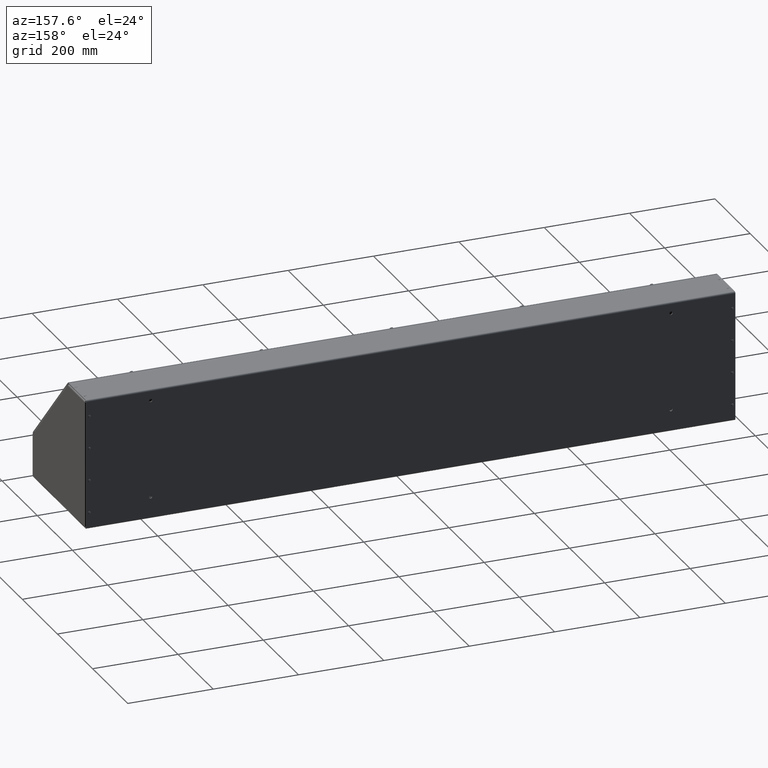
[diagram: clean part render]
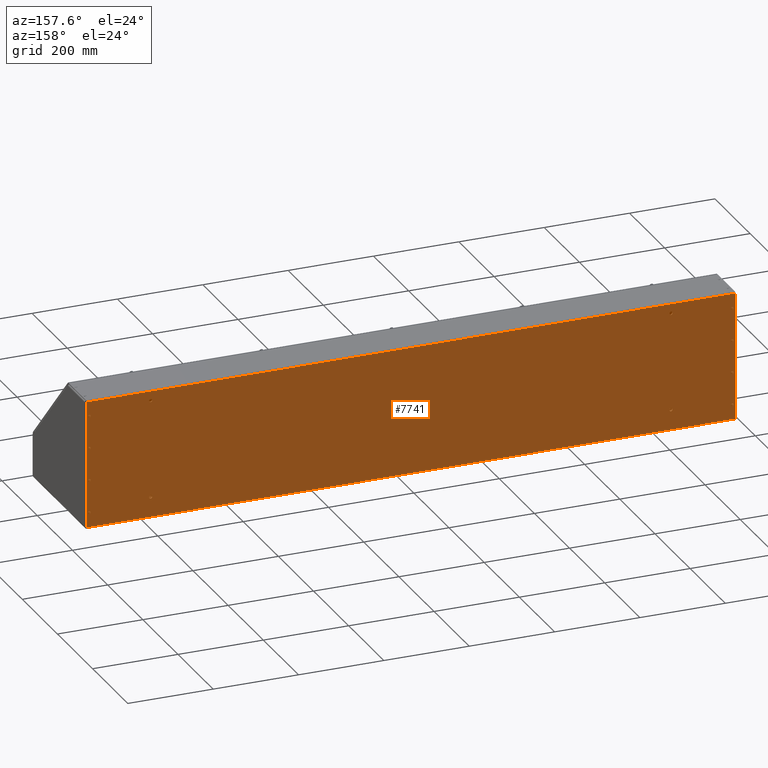
[diagram: same view with one face highlighted and labeled with its STEP entity id]
A machine part, auxiliary view. The second image highlights one B-rep face of the part: STEP entity #7741.
In plain terms, the highlighted planar face has unit normal (0, -1, 0).
Its self-contained STEP definition (entity closure, byte-faithful):
#389 = ORIENTED_EDGE ( 'NONE', *, *, #59073, .T. ) ;
#563 = ORIENTED_EDGE ( 'NONE', *, *, #38403, .T. ) ;
#571 = EDGE_CURVE ( 'NONE', #91689, #44630, #41957, .T. ) ;
#572 = ORIENTED_EDGE ( 'NONE', *, *, #94549, .T. ) ;
#657 = DIRECTION ( 'NONE',  ( 1.576006955218099937E-13, -0.000000000000000000, 1.000000000000000000 ) ) ;
#830 = AXIS2_PLACEMENT_3D ( 'NONE', #27592, #36596, #104263 ) ;
#988 = CARTESIAN_POINT ( 'NONE',  ( -30.03960261284468913, 6.261056077333082115, -1.464499999999999691 ) ) ;
#1269 = CARTESIAN_POINT ( 'NONE',  ( -29.97510261284467603, 6.261056077333143399, 4.535499999999994536 ) ) ;
#1491 = VERTEX_POINT ( 'NONE', #4725 ) ;
#1497 = AXIS2_PLACEMENT_3D ( 'NONE', #5242, #72554, #39494 ) ;
#1575 = EDGE_CURVE ( 'NONE', #13054, #56922, #15361, .T. ) ;
#1670 = DIRECTION ( 'NONE',  ( 0.000000000000000000, -1.000000000000000000, 4.725358691743579985E-15 ) ) ;
#1823 = EDGE_CURVE ( 'NONE', #98237, #48457, #99473, .T. ) ;
#2426 = CARTESIAN_POINT ( 'NONE',  ( 23.61664738715530731, 6.261056077333092773, -0.8593749999999996669 ) ) ;
#2447 = DIRECTION ( 'NONE',  ( -1.576006955218099937E-13, -0.000000000000000000, -1.000000000000000000 ) ) ;
#2761 = VECTOR ( 'NONE', #91342, 39.37007874015748143 ) ;
#3090 = EDGE_CURVE ( 'NONE', #29278, #42735, #69252, .T. ) ;
#3541 = CARTESIAN_POINT ( 'NONE',  ( 23.61664738715530731, 6.261056077333090997, -1.140624999999999556 ) ) ;
#4000 = VECTOR ( 'NONE', #32042, 39.37007874015748143 ) ;
#4181 = VERTEX_POINT ( 'NONE', #86307 ) ;
#4593 = CARTESIAN_POINT ( 'NONE',  ( -0.3833526128446899661, 6.261056077333082115, -2.863500000000000600 ) ) ;
#4655 = ORIENTED_EDGE ( 'NONE', *, *, #88747, .T. ) ;
#4725 = CARTESIAN_POINT ( 'NONE',  ( 29.20839738715530842, 6.261056077333091885, -1.464499999999989477 ) ) ;
#5187 = LINE ( 'NONE', #91348, #4000 ) ;
#5242 = CARTESIAN_POINT ( 'NONE',  ( -30.03960261284468913, 6.261056077333112313, 1.464500000000000135 ) ) ;
#5299 = EDGE_CURVE ( 'NONE', #56922, #86823, #68206, .T. ) ;
#5547 = VERTEX_POINT ( 'NONE', #18872 ) ;
#5672 = DIRECTION ( 'NONE',  ( 0.000000000000000000, -1.000000000000000000, 4.725358691743579985E-15 ) ) ;
#5814 = CARTESIAN_POINT ( 'NONE',  ( 29.20839738715530842, 6.261056077333162939, 4.535500000000009635 ) ) ;
#6348 = EDGE_LOOP ( 'NONE', ( #93161, #572 ) ) ;
#6892 = LINE ( 'NONE', #74162, #20701 ) ;
#7113 = ORIENTED_EDGE ( 'NONE', *, *, #94844, .T. ) ;
#7452 = CARTESIAN_POINT ( 'NONE',  ( -29.97510261284467603, 6.261056077333182479, 7.535499999999993648 ) ) ;
#7453 = ORIENTED_EDGE ( 'NONE', *, *, #49164, .T. ) ;
#7504 = EDGE_CURVE ( 'NONE', #13343, #40418, #70585, .T. ) ;
#7741 = ADVANCED_FACE ( 'NONE', ( #76574, #24462, #34022, #67115, #101193, #16670, #34594, #50848, #25571, #59794, #58706, #68775, #93850 ), #92726, .F. ) ;
#7926 = VECTOR ( 'NONE', #66962, 39.37007874015748143 ) ;
#7969 = LINE ( 'NONE', #74711, #83134 ) ;
#8292 = CARTESIAN_POINT ( 'NONE',  ( 29.33739738715530621, 6.261056077333122083, 1.464499999999990365 ) ) ;
#8530 = CIRCLE ( 'NONE', #62191, 0.06450000000000036260 ) ;
#8562 = ORIENTED_EDGE ( 'NONE', *, *, #14344, .T. ) ;
#9016 = EDGE_CURVE ( 'NONE', #103284, #45340, #87750, .T. ) ;
#9344 = AXIS2_PLACEMENT_3D ( 'NONE', #70575, #86168, #27916 ) ;
#9772 = AXIS2_PLACEMENT_3D ( 'NONE', #10507, #77714, #27262 ) ;
#10507 = CARTESIAN_POINT ( 'NONE',  ( 29.27289738715530731, 6.261056077333091885, -1.535499999999999865 ) ) ;
#11002 = DIRECTION ( 'NONE',  ( 0.000000000000000000, -5.337369685714369804E-15, -1.000000000000000000 ) ) ;
#11069 = CARTESIAN_POINT ( 'NONE',  ( 29.27289738715530731, 6.261056077333162939, 4.400000000000000355 ) ) ;
#11098 = DIRECTION ( 'NONE',  ( -1.576006955218099937E-13, -0.000000000000000000, -1.000000000000000000 ) ) ;
#11121 = CIRCLE ( 'NONE', #23614, 0.06450000000000036260 ) ;
#11229 = LINE ( 'NONE', #96262, #55622 ) ;
#11698 = ORIENTED_EDGE ( 'NONE', *, *, #59885, .T. ) ;
#11703 = CARTESIAN_POINT ( 'NONE',  ( -30.03960261284468913, 6.261056077333082115, -1.535499999999999865 ) ) ;
#11969 = EDGE_CURVE ( 'NONE', #16547, #69580, #35058, .T. ) ;
#12314 = EDGE_LOOP ( 'NONE', ( #46903, #97145, #31073, #68633, #97530 ) ) ;
#12353 = CARTESIAN_POINT ( 'NONE',  ( -24.38335261284468913, 6.261056077333143399, 8.140625000000000000 ) ) ;
#13054 = VERTEX_POINT ( 'NONE', #49703 ) ;
#13343 = VERTEX_POINT ( 'NONE', #95741 ) ;
#13685 = EDGE_CURVE ( 'NONE', #20049, #13054, #40015, .T. ) ;
#13743 = DIRECTION ( 'NONE',  ( 0.000000000000000000, 0.000000000000000000, -1.000000000000000000 ) ) ;
#13867 = VECTOR ( 'NONE', #28404, 39.37007874015748143 ) ;
#13881 = VERTEX_POINT ( 'NONE', #88187 ) ;
#14069 = CARTESIAN_POINT ( 'NONE',  ( 23.61664738715530731, 6.261056077333143399, 7.859375000000000000 ) ) ;
#14344 = EDGE_CURVE ( 'NONE', #88335, #13881, #99930, .T. ) ;
#14372 = AXIS2_PLACEMENT_3D ( 'NONE', #105012, #103925, #11002 ) ;
#14767 = CARTESIAN_POINT ( 'NONE',  ( -30.03960261284468913, 6.261056077333082115, -1.600000000000000089 ) ) ;
#15250 = ORIENTED_EDGE ( 'NONE', *, *, #9016, .T. ) ;
#15311 = CIRCLE ( 'NONE', #90398, 0.06450000000000036260 ) ;
#15361 = LINE ( 'NONE', #40075, #36881 ) ;
#15489 = EDGE_CURVE ( 'NONE', #58732, #13343, #7969, .T. ) ;
#15604 = EDGE_CURVE ( 'NONE', #101070, #100919, #65307, .T. ) ;
#15839 = LINE ( 'NONE', #24744, #53168 ) ;
#15911 = LINE ( 'NONE', #59047, #102691 ) ;
#16359 = EDGE_CURVE ( 'NONE', #85593, #21871, #45336, .T. ) ;
#16547 = VERTEX_POINT ( 'NONE', #21903 ) ;
#16670 = FACE_BOUND ( 'NONE', #98686, .T. ) ;
#17379 = CIRCLE ( 'NONE', #29844, 0.06450000000000036260 ) ;
#17423 = AXIS2_PLACEMENT_3D ( 'NONE', #36510, #96310, #29750 ) ;
#17494 = EDGE_LOOP ( 'NONE', ( #34607, #103001, #85818, #71762, #389 ) ) ;
#18037 = VERTEX_POINT ( 'NONE', #92222 ) ;
#18133 = CARTESIAN_POINT ( 'NONE',  ( 29.27289738715530731, 6.261056077333122083, 1.535500000000000087 ) ) ;
#18212 = DIRECTION ( 'NONE',  ( 0.000000000000000000, -1.000000000000000000, 4.725358691743579985E-15 ) ) ;
#18573 = ORIENTED_EDGE ( 'NONE', *, *, #1823, .T. ) ;
#18872 = CARTESIAN_POINT ( 'NONE',  ( 29.33739738715530621, 6.261056077333091885, -1.535500000000009857 ) ) ;
#19113 = VERTEX_POINT ( 'NONE', #62982 ) ;
#19323 = AXIS2_PLACEMENT_3D ( 'NONE', #56008, #97893, #107400 ) ;
#19372 = CARTESIAN_POINT ( 'NONE',  ( -30.10410261284468803, 6.261056077333082115, -1.464499999999989477 ) ) ;
#20049 = VERTEX_POINT ( 'NONE', #7452 ) ;
#20272 = VERTEX_POINT ( 'NONE', #74074 ) ;
#20463 = ORIENTED_EDGE ( 'NONE', *, *, #57543, .T. ) ;
#20673 = DIRECTION ( 'NONE',  ( 0.000000000000000000, 0.000000000000000000, -1.000000000000000000 ) ) ;
#20701 = VECTOR ( 'NONE', #47882, 39.37007874015748143 ) ;
#20708 = CARTESIAN_POINT ( 'NONE',  ( 29.33739738715532042, 6.261056077333122083, 1.535499999999994536 ) ) ;
#20948 = CARTESIAN_POINT ( 'NONE',  ( -29.97510261284469024, 6.261056077333182479, 7.464499999999993918 ) ) ;
#21248 = ORIENTED_EDGE ( 'NONE', *, *, #31396, .T. ) ;
#21665 = EDGE_CURVE ( 'NONE', #54007, #53763, #100821, .T. ) ;
#21705 = ORIENTED_EDGE ( 'NONE', *, *, #24770, .T. ) ;
#21800 = EDGE_CURVE ( 'NONE', #82894, #51797, #45607, .T. ) ;
#21841 = CIRCLE ( 'NONE', #50509, 0.06450000000000036260 ) ;
#21871 = VERTEX_POINT ( 'NONE', #101403 ) ;
#21903 = CARTESIAN_POINT ( 'NONE',  ( -29.97510261284469024, 6.261056077333112313, 1.464499999999989699 ) ) ;
#21992 = AXIS2_PLACEMENT_3D ( 'NONE', #988, #25581, #93860 ) ;
#22786 = EDGE_CURVE ( 'NONE', #66961, #107247, #63563, .T. ) ;
#23179 = CARTESIAN_POINT ( 'NONE',  ( 29.27289738715530731, 6.261056077333162939, 4.464500000000000135 ) ) ;
#23614 = AXIS2_PLACEMENT_3D ( 'NONE', #11703, #30127, #45892 ) ;
#23697 = CIRCLE ( 'NONE', #21992, 0.06450000000000036260 ) ;
#23841 = CARTESIAN_POINT ( 'NONE',  ( -30.03960261284468913, 6.261056077333182479, 7.535500000000000753 ) ) ;
#23897 = ORIENTED_EDGE ( 'NONE', *, *, #109055, .T. ) ;
#23903 = EDGE_CURVE ( 'NONE', #40828, #56386, #86435, .T. ) ;
#23923 = CARTESIAN_POINT ( 'NONE',  ( 29.27289738715530731, 6.261056077333162939, 4.464500000000000135 ) ) ;
#24462 = FACE_BOUND ( 'NONE', #39891, .T. ) ;
#24744 = CARTESIAN_POINT ( 'NONE',  ( 29.33739738715530621, 6.261056077333091885, -1.535500000000009857 ) ) ;
#24749 = DIRECTION ( 'NONE',  ( 0.000000000000000000, -1.000000000000000000, 4.725358691743579985E-15 ) ) ;
#24770 = EDGE_CURVE ( 'NONE', #101311, #88335, #23697, .T. ) ;
#25571 = FACE_BOUND ( 'NONE', #6348, .T. ) ;
#25581 = DIRECTION ( 'NONE',  ( 0.000000000000000000, -1.000000000000000000, 4.725358691743579985E-15 ) ) ;
#25982 = ORIENTED_EDGE ( 'NONE', *, *, #92373, .F. ) ;
#26626 = DIRECTION ( 'NONE',  ( 0.000000000000000000, -7.770589848645018532E-15, -1.000000000000000000 ) ) ;
#26746 = LINE ( 'NONE', #45827, #13867 ) ;
#26843 = DIRECTION ( 'NONE',  ( 0.000000000000000000, 0.000000000000000000, -1.000000000000000000 ) ) ;
#27262 = DIRECTION ( 'NONE',  ( 0.000000000000000000, 0.000000000000000000, -1.000000000000000000 ) ) ;
#27592 = CARTESIAN_POINT ( 'NONE',  ( 29.27289738715530731, 6.261056077333122083, 1.464500000000000135 ) ) ;
#27651 = VERTEX_POINT ( 'NONE', #105384 ) ;
#27654 = VERTEX_POINT ( 'NONE', #62898 ) ;
#27916 = DIRECTION ( 'NONE',  ( 0.000000000000000000, 0.000000000000000000, -1.000000000000000000 ) ) ;
#28106 = VECTOR ( 'NONE', #87596, 39.37007874015748143 ) ;
#28271 = CIRCLE ( 'NONE', #19323, 0.1406249999999999445 ) ;
#28342 = EDGE_CURVE ( 'NONE', #100919, #101070, #30062, .T. ) ;
#28358 = CARTESIAN_POINT ( 'NONE',  ( -24.38335261284468913, 6.261056077333091885, -0.9999999999999996669 ) ) ;
#28404 = DIRECTION ( 'NONE',  ( -1.576006955218099937E-13, -0.000000000000000000, -1.000000000000000000 ) ) ;
#29254 = CIRCLE ( 'NONE', #50729, 0.06450000000000036260 ) ;
#29278 = VERTEX_POINT ( 'NONE', #64154 ) ;
#29667 = CARTESIAN_POINT ( 'NONE',  ( -30.03960261284468913, 6.261056077333182479, 7.464500000000000135 ) ) ;
#29716 = CARTESIAN_POINT ( 'NONE',  ( 29.20839738715530842, 6.261056077333122083, 1.535500000000009857 ) ) ;
#29750 = DIRECTION ( 'NONE',  ( 0.000000000000000000, 0.000000000000000000, -1.000000000000000000 ) ) ;
#29844 = AXIS2_PLACEMENT_3D ( 'NONE', #99560, #64929, #56544 ) ;
#29904 = ORIENTED_EDGE ( 'NONE', *, *, #15489, .F. ) ;
#30062 = CIRCLE ( 'NONE', #39024, 0.1406250000000000833 ) ;
#30127 = DIRECTION ( 'NONE',  ( 0.000000000000000000, -1.000000000000000000, 4.725358691743579985E-15 ) ) ;
#30152 = VERTEX_POINT ( 'NONE', #2426 ) ;
#31073 = ORIENTED_EDGE ( 'NONE', *, *, #78190, .T. ) ;
#31262 = DIRECTION ( 'NONE',  ( 0.000000000000000000, -1.000000000000000000, 4.725358691743579985E-15 ) ) ;
#31396 = EDGE_CURVE ( 'NONE', #55935, #96360, #41409, .T. ) ;
#31457 = CARTESIAN_POINT ( 'NONE',  ( -30.03960261284468913, 6.261056077333143399, 4.464500000000000135 ) ) ;
#31535 = DIRECTION ( 'NONE',  ( 0.000000000000000000, 0.000000000000000000, -1.000000000000000000 ) ) ;
#32042 = DIRECTION ( 'NONE',  ( 2.465190328815626859E-32, 5.470852748954328810E-48, 1.000000000000000000 ) ) ;
#32211 = VERTEX_POINT ( 'NONE', #11069 ) ;
#32681 = CIRCLE ( 'NONE', #50574, 0.1406249999999999445 ) ;
#32718 = EDGE_CURVE ( 'NONE', #40418, #27651, #109618, .T. ) ;
#33461 = ORIENTED_EDGE ( 'NONE', *, *, #110421, .T. ) ;
#34022 = FACE_BOUND ( 'NONE', #97734, .T. ) ;
#34594 = FACE_BOUND ( 'NONE', #43454, .T. ) ;
#34607 = ORIENTED_EDGE ( 'NONE', *, *, #98317, .T. ) ;
#35058 = LINE ( 'NONE', #97608, #28106 ) ;
#35075 = ORIENTED_EDGE ( 'NONE', *, *, #50912, .T. ) ;
#35549 = CARTESIAN_POINT ( 'NONE',  ( -30.10410261284468803, 6.261056077333143399, 4.535500000000009635 ) ) ;
#35729 = VECTOR ( 'NONE', #78362, 39.37007874015748143 ) ;
#36169 = DIRECTION ( 'NONE',  ( 0.000000000000000000, -1.000000000000000000, 4.725358691743579985E-15 ) ) ;
#36467 = LINE ( 'NONE', #29716, #40985 ) ;
#36510 = CARTESIAN_POINT ( 'NONE',  ( 29.27289738715530731, 6.261056077333122083, 1.464500000000000135 ) ) ;
#36596 = DIRECTION ( 'NONE',  ( 0.000000000000000000, -1.000000000000000000, 4.725358691743579985E-15 ) ) ;
#36881 = VECTOR ( 'NONE', #74206, 39.37007874015748143 ) ;
#37160 = CARTESIAN_POINT ( 'NONE',  ( 29.27289738715530731, 6.261056077333192249, 7.464500000000000135 ) ) ;
#37174 = DIRECTION ( 'NONE',  ( 0.000000000000000000, -1.000000000000000000, 4.725358691743579985E-15 ) ) ;
#37283 = EDGE_CURVE ( 'NONE', #93115, #30152, #32681, .T. ) ;
#37493 = CARTESIAN_POINT ( 'NONE',  ( -30.32085261284468913, 6.261056077333143399, -2.863500000000000600 ) ) ;
#37581 = CARTESIAN_POINT ( 'NONE',  ( -30.10410261284470224, 6.261056077333112313, 1.464500000000005020 ) ) ;
#38025 = EDGE_LOOP ( 'NONE', ( #73072, #67310, #20463, #95899, #103128 ) ) ;
#38403 = EDGE_CURVE ( 'NONE', #86823, #68075, #90313, .T. ) ;
#38678 = EDGE_LOOP ( 'NONE', ( #80140, #102970 ) ) ;
#38932 = CIRCLE ( 'NONE', #106735, 0.06450000000000036260 ) ;
#39024 = AXIS2_PLACEMENT_3D ( 'NONE', #95279, #87470, #96937 ) ;
#39387 = DIRECTION ( 'NONE',  ( 0.000000000000000000, -1.000000000000000000, 0.000000000000000000 ) ) ;
#39456 = VECTOR ( 'NONE', #73021, 39.37007874015748143 ) ;
#39494 = DIRECTION ( 'NONE',  ( 0.000000000000000000, 0.000000000000000000, -1.000000000000000000 ) ) ;
#39891 = EDGE_LOOP ( 'NONE', ( #71776, #66234, #50818, #90031, #23897 ) ) ;
#40015 = CIRCLE ( 'NONE', #61359, 0.06450000000000036260 ) ;
#40075 = CARTESIAN_POINT ( 'NONE',  ( -30.10410261284468803, 6.261056077333182479, 7.535500000000000753 ) ) ;
#40418 = VERTEX_POINT ( 'NONE', #86454 ) ;
#40828 = VERTEX_POINT ( 'NONE', #77854 ) ;
#40985 = VECTOR ( 'NONE', #98512, 39.37007874015748143 ) ;
#41195 = CARTESIAN_POINT ( 'NONE',  ( -30.10410261284468803, 6.261056077333112313, 1.535500000000009857 ) ) ;
#41409 = LINE ( 'NONE', #8292, #65822 ) ;
#41638 = DIRECTION ( 'NONE',  ( 0.000000000000000000, 0.000000000000000000, -1.000000000000000000 ) ) ;
#41957 = CIRCLE ( 'NONE', #9772, 0.06450000000000036260 ) ;
#42185 = CARTESIAN_POINT ( 'NONE',  ( 29.20839738715529421, 6.261056077333122083, 1.464500000000005020 ) ) ;
#42338 = CARTESIAN_POINT ( 'NONE',  ( -30.10410261284468803, 6.261056077333082115, -1.464499999999989477 ) ) ;
#42527 = DIRECTION ( 'NONE',  ( 1.576006955218099937E-13, -0.000000000000000000, 1.000000000000000000 ) ) ;
#42675 = AXIS2_PLACEMENT_3D ( 'NONE', #31457, #5672, #73541 ) ;
#42735 = VERTEX_POINT ( 'NONE', #1269 ) ;
#42878 = ORIENTED_EDGE ( 'NONE', *, *, #23903, .T. ) ;
#43011 = VERTEX_POINT ( 'NONE', #89490 ) ;
#43454 = EDGE_LOOP ( 'NONE', ( #75092, #107352, #42878, #4655, #82308 ) ) ;
#43706 = ORIENTED_EDGE ( 'NONE', *, *, #32718, .F. ) ;
#43710 = AXIS2_PLACEMENT_3D ( 'NONE', #86492, #18212, #61341 ) ;
#44510 = DIRECTION ( 'NONE',  ( 0.000000000000000000, -1.000000000000000000, 4.725358691743579985E-15 ) ) ;
#44630 = VERTEX_POINT ( 'NONE', #66377 ) ;
#44698 = DIRECTION ( 'NONE',  ( 0.000000000000000000, 0.000000000000000000, -1.000000000000000000 ) ) ;
#45003 = AXIS2_PLACEMENT_3D ( 'NONE', #23923, #49237, #92210 ) ;
#45144 = VERTEX_POINT ( 'NONE', #84059 ) ;
#45336 = CIRCLE ( 'NONE', #52518, 0.06450000000000036260 ) ;
#45340 = VERTEX_POINT ( 'NONE', #12353 ) ;
#45607 = CIRCLE ( 'NONE', #74233, 0.06450000000000036260 ) ;
#45827 = CARTESIAN_POINT ( 'NONE',  ( 29.20839738715530842, 6.261056077333091885, -1.464499999999989477 ) ) ;
#45869 = LINE ( 'NONE', #78874, #94913 ) ;
#45892 = DIRECTION ( 'NONE',  ( 0.000000000000000000, 0.000000000000000000, -1.000000000000000000 ) ) ;
#46808 = CARTESIAN_POINT ( 'NONE',  ( 29.20839738715530842, 6.261056077333162939, 4.535500000000009635 ) ) ;
#46903 = ORIENTED_EDGE ( 'NONE', *, *, #11969, .T. ) ;
#46980 = DIRECTION ( 'NONE',  ( 0.000000000000000000, -1.000000000000000000, 4.725358691743579985E-15 ) ) ;
#47882 = DIRECTION ( 'NONE',  ( 1.576006955218099937E-13, -0.000000000000000000, 1.000000000000000000 ) ) ;
#48095 = DIRECTION ( 'NONE',  ( 0.000000000000000000, 0.000000000000000000, -1.000000000000000000 ) ) ;
#48457 = VERTEX_POINT ( 'NONE', #66613 ) ;
#49164 = EDGE_CURVE ( 'NONE', #68075, #20049, #11229, .T. ) ;
#49171 = ORIENTED_EDGE ( 'NONE', *, *, #5299, .T. ) ;
#49237 = DIRECTION ( 'NONE',  ( 0.000000000000000000, -1.000000000000000000, 4.725358691743579985E-15 ) ) ;
#49703 = CARTESIAN_POINT ( 'NONE',  ( -30.10410261284468803, 6.261056077333182479, 7.535500000000006970 ) ) ;
#49715 = DIRECTION ( 'NONE',  ( 0.000000000000000000, -1.000000000000000000, 4.725358691743579985E-15 ) ) ;
#49728 = EDGE_LOOP ( 'NONE', ( #15250, #35075 ) ) ;
#50299 = AXIS2_PLACEMENT_3D ( 'NONE', #80040, #1670, #26843 ) ;
#50509 = AXIS2_PLACEMENT_3D ( 'NONE', #18133, #44510, #103767 ) ;
#50574 = AXIS2_PLACEMENT_3D ( 'NONE', #73369, #31262, #106267 ) ;
#50583 = CARTESIAN_POINT ( 'NONE',  ( 23.61664738715530731, 6.261056077333143399, 8.000000000000000000 ) ) ;
#50676 = DIRECTION ( 'NONE',  ( 0.000000000000000000, -1.000000000000000000, 4.725358691743579985E-15 ) ) ;
#50729 = AXIS2_PLACEMENT_3D ( 'NONE', #59523, #24749, #58980 ) ;
#50818 = ORIENTED_EDGE ( 'NONE', *, *, #105155, .T. ) ;
#50848 = FACE_BOUND ( 'NONE', #38025, .T. ) ;
#50867 = CIRCLE ( 'NONE', #43710, 0.06450000000000036260 ) ;
#50912 = EDGE_CURVE ( 'NONE', #45340, #103284, #102270, .T. ) ;
#51067 = LINE ( 'NONE', #68425, #59620 ) ;
#51437 = DIRECTION ( 'NONE',  ( 0.000000000000000000, 0.000000000000000000, -1.000000000000000000 ) ) ;
#51797 = VERTEX_POINT ( 'NONE', #65971 ) ;
#52135 = VERTEX_POINT ( 'NONE', #41195 ) ;
#52518 = AXIS2_PLACEMENT_3D ( 'NONE', #53084, #54775, #44698 ) ;
#52568 = CARTESIAN_POINT ( 'NONE',  ( -29.97510261284467603, 6.261056077333112313, 1.535499999999994536 ) ) ;
#52725 = AXIS2_PLACEMENT_3D ( 'NONE', #86520, #36169, #26626 ) ;
#53084 = CARTESIAN_POINT ( 'NONE',  ( -30.03960261284468913, 6.261056077333112313, 1.464500000000000135 ) ) ;
#53168 = VECTOR ( 'NONE', #102558, 39.37007874015748143 ) ;
#53763 = VERTEX_POINT ( 'NONE', #108183 ) ;
#54007 = VERTEX_POINT ( 'NONE', #42185 ) ;
#54445 = DIRECTION ( 'NONE',  ( 0.000000000000000000, 0.000000000000000000, -1.000000000000000000 ) ) ;
#54775 = DIRECTION ( 'NONE',  ( 0.000000000000000000, -1.000000000000000000, 4.725358691743579985E-15 ) ) ;
#55127 = CARTESIAN_POINT ( 'NONE',  ( -30.10410261284470224, 6.261056077333143399, 4.464500000000004576 ) ) ;
#55622 = VECTOR ( 'NONE', #71774, 39.37007874015748143 ) ;
#55642 = CARTESIAN_POINT ( 'NONE',  ( -30.03960261284468913, 6.261056077333082115, -1.535499999999999865 ) ) ;
#55935 = VERTEX_POINT ( 'NONE', #103144 ) ;
#56008 = CARTESIAN_POINT ( 'NONE',  ( -24.38335261284468913, 6.261056077333091885, -0.9999999999999996669 ) ) ;
#56386 = VERTEX_POINT ( 'NONE', #55127 ) ;
#56544 = DIRECTION ( 'NONE',  ( 0.000000000000000000, 0.000000000000000000, -1.000000000000000000 ) ) ;
#56922 = VERTEX_POINT ( 'NONE', #77571 ) ;
#57501 = EDGE_CURVE ( 'NONE', #69580, #52135, #50867, .T. ) ;
#57543 = EDGE_CURVE ( 'NONE', #107247, #45144, #74201, .T. ) ;
#57572 = AXIS2_PLACEMENT_3D ( 'NONE', #23179, #81476, #13743 ) ;
#57610 = EDGE_CURVE ( 'NONE', #19113, #82894, #15911, .T. ) ;
#58706 = FACE_BOUND ( 'NONE', #94137, .T. ) ;
#58732 = VERTEX_POINT ( 'NONE', #106966 ) ;
#58739 = DIRECTION ( 'NONE',  ( 0.000000000000000000, -1.000000000000000000, 4.725358691743579985E-15 ) ) ;
#58980 = DIRECTION ( 'NONE',  ( 0.000000000000000000, 0.000000000000000000, -1.000000000000000000 ) ) ;
#59047 = CARTESIAN_POINT ( 'NONE',  ( 29.20839738715530842, 6.261056077333192249, 7.535500000000000753 ) ) ;
#59073 = EDGE_CURVE ( 'NONE', #51797, #18037, #108085, .T. ) ;
#59262 = EDGE_CURVE ( 'NONE', #43011, #66961, #84086, .T. ) ;
#59288 = CARTESIAN_POINT ( 'NONE',  ( 29.27289738715530731, 6.261056077333091885, -1.535499999999999865 ) ) ;
#59523 = CARTESIAN_POINT ( 'NONE',  ( 29.27289738715530731, 6.261056077333091885, -1.464499999999999691 ) ) ;
#59620 = VECTOR ( 'NONE', #657, 39.37007874015748143 ) ;
#59794 = FACE_BOUND ( 'NONE', #38678, .T. ) ;
#59885 = EDGE_CURVE ( 'NONE', #53763, #55935, #94145, .T. ) ;
#59893 = AXIS2_PLACEMENT_3D ( 'NONE', #82583, #50676, #89428 ) ;
#61270 = EDGE_CURVE ( 'NONE', #21871, #16547, #76631, .T. ) ;
#61341 = DIRECTION ( 'NONE',  ( 0.000000000000000000, 0.000000000000000000, -1.000000000000000000 ) ) ;
#61359 = AXIS2_PLACEMENT_3D ( 'NONE', #23841, #46980, #81053 ) ;
#62128 = VECTOR ( 'NONE', #101636, 39.37007874015748143 ) ;
#62191 = AXIS2_PLACEMENT_3D ( 'NONE', #85771, #75206, #41638 ) ;
#62796 = ORIENTED_EDGE ( 'NONE', *, *, #1575, .T. ) ;
#62898 = CARTESIAN_POINT ( 'NONE',  ( -29.97510261284469024, 6.261056077333082115, -1.535500000000009857 ) ) ;
#62982 = CARTESIAN_POINT ( 'NONE',  ( 29.20839738715530842, 6.261056077333192249, 7.535500000000006970 ) ) ;
#63563 = CIRCLE ( 'NONE', #102927, 0.06450000000000036260 ) ;
#64154 = CARTESIAN_POINT ( 'NONE',  ( -29.97510261284469024, 6.261056077333143399, 4.464499999999990365 ) ) ;
#64929 = DIRECTION ( 'NONE',  ( 0.000000000000000000, -1.000000000000000000, 4.725358691743579985E-15 ) ) ;
#65023 = VERTEX_POINT ( 'NONE', #84157 ) ;
#65307 = CIRCLE ( 'NONE', #93808, 0.1406250000000000833 ) ;
#65822 = VECTOR ( 'NONE', #42527, 39.37007874015748143 ) ;
#65971 = CARTESIAN_POINT ( 'NONE',  ( 29.27289738715530731, 6.261056077333192249, 7.399999999999999467 ) ) ;
#66234 = ORIENTED_EDGE ( 'NONE', *, *, #93133, .T. ) ;
#66259 = CARTESIAN_POINT ( 'NONE',  ( 29.33739738715530621, 6.261056077333162939, 4.464499999999990365 ) ) ;
#66377 = CARTESIAN_POINT ( 'NONE',  ( 29.27289738715530731, 6.261056077333091885, -1.600000000000000089 ) ) ;
#66545 = CARTESIAN_POINT ( 'NONE',  ( 29.33739738715532042, 6.261056077333162939, 4.535499999999994536 ) ) ;
#66613 = CARTESIAN_POINT ( 'NONE',  ( -24.38335261284468913, 6.261056077333090997, -1.140624999999999556 ) ) ;
#66772 = CARTESIAN_POINT ( 'NONE',  ( -24.38335261284468913, 6.261056077333143399, 7.859375000000000000 ) ) ;
#66961 = VERTEX_POINT ( 'NONE', #66545 ) ;
#66962 = DIRECTION ( 'NONE',  ( -1.576006955218099937E-13, -0.000000000000000000, -1.000000000000000000 ) ) ;
#67115 = FACE_BOUND ( 'NONE', #17494, .T. ) ;
#67310 = ORIENTED_EDGE ( 'NONE', *, *, #22786, .T. ) ;
#67454 = DIRECTION ( 'NONE',  ( -1.576006955218099937E-13, -0.000000000000000000, -1.000000000000000000 ) ) ;
#68075 = VERTEX_POINT ( 'NONE', #20948 ) ;
#68206 = CIRCLE ( 'NONE', #50299, 0.06450000000000036260 ) ;
#68425 = CARTESIAN_POINT ( 'NONE',  ( 29.33739738715530621, 6.261056077333192249, 7.464500000000000135 ) ) ;
#68633 = ORIENTED_EDGE ( 'NONE', *, *, #16359, .T. ) ;
#68775 = FACE_BOUND ( 'NONE', #49728, .T. ) ;
#68873 = VERTEX_POINT ( 'NONE', #14767 ) ;
#69252 = LINE ( 'NONE', #93764, #62128 ) ;
#69580 = VERTEX_POINT ( 'NONE', #52568 ) ;
#70575 = CARTESIAN_POINT ( 'NONE',  ( -24.38335261284468913, 6.261056077333143399, 8.000000000000000000 ) ) ;
#70585 = LINE ( 'NONE', #37493, #35729 ) ;
#71003 = AXIS2_PLACEMENT_3D ( 'NONE', #28358, #104462, #72114 ) ;
#71321 = EDGE_CURVE ( 'NONE', #45144, #32211, #93147, .T. ) ;
#71762 = ORIENTED_EDGE ( 'NONE', *, *, #21800, .T. ) ;
#71774 = DIRECTION ( 'NONE',  ( 1.576006955218099937E-13, -0.000000000000000000, 1.000000000000000000 ) ) ;
#71776 = ORIENTED_EDGE ( 'NONE', *, *, #88652, .T. ) ;
#72114 = DIRECTION ( 'NONE',  ( 0.000000000000000000, -7.770589848645018532E-15, -1.000000000000000000 ) ) ;
#72446 = CARTESIAN_POINT ( 'NONE',  ( -24.38335261284468913, 6.261056077333143399, 8.000000000000000000 ) ) ;
#72554 = DIRECTION ( 'NONE',  ( 0.000000000000000000, -1.000000000000000000, 4.725358691743579985E-15 ) ) ;
#73017 = DIRECTION ( 'NONE',  ( 0.000000000000000000, 0.000000000000000000, -1.000000000000000000 ) ) ;
#73021 = DIRECTION ( 'NONE',  ( 1.000000000000000000, 2.219241526711139950E-16, 0.000000000000000000 ) ) ;
#73072 = ORIENTED_EDGE ( 'NONE', *, *, #59262, .T. ) ;
#73369 = CARTESIAN_POINT ( 'NONE',  ( 23.61664738715530731, 6.261056077333091885, -0.9999999999999996669 ) ) ;
#73541 = DIRECTION ( 'NONE',  ( 0.000000000000000000, 0.000000000000000000, -1.000000000000000000 ) ) ;
#74074 = CARTESIAN_POINT ( 'NONE',  ( -30.03960261284468913, 6.261056077333143399, 4.400000000000000355 ) ) ;
#74153 = DIRECTION ( 'NONE',  ( -1.000000000000000000, -1.931182504037849771E-16, 1.030743495463358714E-30 ) ) ;
#74162 = CARTESIAN_POINT ( 'NONE',  ( -29.97510261284469024, 6.261056077333082115, -1.535500000000009857 ) ) ;
#74201 = LINE ( 'NONE', #46808, #88276 ) ;
#74206 = DIRECTION ( 'NONE',  ( -1.576006955218099937E-13, -0.000000000000000000, -1.000000000000000000 ) ) ;
#74233 = AXIS2_PLACEMENT_3D ( 'NONE', #37160, #105369, #73017 ) ;
#74711 = CARTESIAN_POINT ( 'NONE',  ( -0.3833526128446851922, 6.261056077333144287, 8.863500000000001933 ) ) ;
#75092 = ORIENTED_EDGE ( 'NONE', *, *, #3090, .T. ) ;
#75206 = DIRECTION ( 'NONE',  ( 0.000000000000000000, -1.000000000000000000, 4.725358691743579985E-15 ) ) ;
#75454 = CARTESIAN_POINT ( 'NONE',  ( 29.27289738715530731, 6.261056077333162939, 4.535499999999999865 ) ) ;
#75785 = VERTEX_POINT ( 'NONE', #109299 ) ;
#76574 = FACE_BOUND ( 'NONE', #89879, .T. ) ;
#76631 = CIRCLE ( 'NONE', #1497, 0.06450000000000036260 ) ;
#77571 = CARTESIAN_POINT ( 'NONE',  ( -30.10410261284470224, 6.261056077333182479, 7.464500000000006352 ) ) ;
#77714 = DIRECTION ( 'NONE',  ( 0.000000000000000000, -1.000000000000000000, 4.725358691743579985E-15 ) ) ;
#77854 = CARTESIAN_POINT ( 'NONE',  ( -30.10410261284468803, 6.261056077333143399, 4.535500000000009635 ) ) ;
#78190 = EDGE_CURVE ( 'NONE', #52135, #85593, #45869, .T. ) ;
#78362 = DIRECTION ( 'NONE',  ( 1.751623080406021339E-46, 3.887274679182728645E-62, -1.000000000000000000 ) ) ;
#78781 = EDGE_CURVE ( 'NONE', #96360, #75785, #21841, .T. ) ;
#78874 = CARTESIAN_POINT ( 'NONE',  ( -30.10410261284468803, 6.261056077333112313, 1.535500000000009857 ) ) ;
#79028 = CARTESIAN_POINT ( 'NONE',  ( 29.27289738715530731, 6.261056077333192249, 7.535500000000000753 ) ) ;
#79688 = DIRECTION ( 'NONE',  ( 0.000000000000000000, 0.000000000000000000, -1.000000000000000000 ) ) ;
#80040 = CARTESIAN_POINT ( 'NONE',  ( -30.03960261284468913, 6.261056077333182479, 7.464500000000000135 ) ) ;
#80128 = CIRCLE ( 'NONE', #42675, 0.06450000000000036260 ) ;
#80140 = ORIENTED_EDGE ( 'NONE', *, *, #15604, .T. ) ;
#80866 = ORIENTED_EDGE ( 'NONE', *, *, #78781, .T. ) ;
#81053 = DIRECTION ( 'NONE',  ( 0.000000000000000000, 0.000000000000000000, -1.000000000000000000 ) ) ;
#81476 = DIRECTION ( 'NONE',  ( 0.000000000000000000, -1.000000000000000000, 4.725358691743579985E-15 ) ) ;
#81657 = EDGE_CURVE ( 'NONE', #27654, #101311, #6892, .T. ) ;
#81758 = VECTOR ( 'NONE', #2447, 39.37007874015748143 ) ;
#82308 = ORIENTED_EDGE ( 'NONE', *, *, #105419, .T. ) ;
#82583 = CARTESIAN_POINT ( 'NONE',  ( 29.27289738715530731, 6.261056077333192249, 7.464500000000000135 ) ) ;
#82894 = VERTEX_POINT ( 'NONE', #100171 ) ;
#83134 = VECTOR ( 'NONE', #74153, 39.37007874015748143 ) ;
#83931 = EDGE_CURVE ( 'NONE', #13881, #68873, #11121, .T. ) ;
#84059 = CARTESIAN_POINT ( 'NONE',  ( 29.20839738715529421, 6.261056077333162939, 4.464500000000004576 ) ) ;
#84086 = LINE ( 'NONE', #66259, #2761 ) ;
#84108 = ORIENTED_EDGE ( 'NONE', *, *, #7504, .F. ) ;
#84157 = CARTESIAN_POINT ( 'NONE',  ( 29.33739738715532042, 6.261056077333091885, -1.464500000000004576 ) ) ;
#84173 = AXIS2_PLACEMENT_3D ( 'NONE', #72446, #39387, #98048 ) ;
#85593 = VERTEX_POINT ( 'NONE', #37581 ) ;
#85771 = CARTESIAN_POINT ( 'NONE',  ( -30.03960261284468913, 6.261056077333143399, 4.464500000000000135 ) ) ;
#85818 = ORIENTED_EDGE ( 'NONE', *, *, #57610, .T. ) ;
#86168 = DIRECTION ( 'NONE',  ( 0.000000000000000000, -1.000000000000000000, 0.000000000000000000 ) ) ;
#86307 = CARTESIAN_POINT ( 'NONE',  ( 29.33739738715532042, 6.261056077333192249, 7.535499999999993648 ) ) ;
#86435 = LINE ( 'NONE', #35549, #81758 ) ;
#86454 = CARTESIAN_POINT ( 'NONE',  ( -30.32085261284468913, 6.261056077333109648, -2.863500000000000600 ) ) ;
#86492 = CARTESIAN_POINT ( 'NONE',  ( -30.03960261284468913, 6.261056077333112313, 1.535500000000000087 ) ) ;
#86520 = CARTESIAN_POINT ( 'NONE',  ( 23.61664738715530731, 6.261056077333091885, -0.9999999999999996669 ) ) ;
#86823 = VERTEX_POINT ( 'NONE', #87644 ) ;
#87470 = DIRECTION ( 'NONE',  ( 0.000000000000000000, -1.000000000000000000, 0.000000000000000000 ) ) ;
#87596 = DIRECTION ( 'NONE',  ( 1.576006955218099937E-13, -0.000000000000000000, 1.000000000000000000 ) ) ;
#87644 = CARTESIAN_POINT ( 'NONE',  ( -30.03960261284468913, 6.261056077333182479, 7.399999999999999467 ) ) ;
#87750 = CIRCLE ( 'NONE', #84173, 0.1406250000000000833 ) ;
#87860 = DIRECTION ( 'NONE',  ( 0.000000000000000000, -1.000000000000000000, 4.725358691743579985E-15 ) ) ;
#88170 = ORIENTED_EDGE ( 'NONE', *, *, #83931, .T. ) ;
#88187 = CARTESIAN_POINT ( 'NONE',  ( -30.10410261284470224, 6.261056077333082115, -1.535499999999994536 ) ) ;
#88276 = VECTOR ( 'NONE', #108238, 39.37007874015748143 ) ;
#88335 = VERTEX_POINT ( 'NONE', #19372 ) ;
#88652 = EDGE_CURVE ( 'NONE', #5547, #65023, #15839, .T. ) ;
#88747 = EDGE_CURVE ( 'NONE', #56386, #20272, #8530, .T. ) ;
#88822 = EDGE_LOOP ( 'NONE', ( #25982, #43706, #84108, #29904 ) ) ;
#88868 = ORIENTED_EDGE ( 'NONE', *, *, #95155, .T. ) ;
#89428 = DIRECTION ( 'NONE',  ( 0.000000000000000000, 0.000000000000000000, -1.000000000000000000 ) ) ;
#89490 = CARTESIAN_POINT ( 'NONE',  ( 29.33739738715530621, 6.261056077333162939, 4.464499999999990365 ) ) ;
#89694 = CIRCLE ( 'NONE', #57572, 0.06450000000000036260 ) ;
#89879 = EDGE_LOOP ( 'NONE', ( #99392, #21705, #8562, #88170, #7113 ) ) ;
#90031 = ORIENTED_EDGE ( 'NONE', *, *, #571, .T. ) ;
#90185 = CARTESIAN_POINT ( 'NONE',  ( 23.61664738715530731, 6.261056077333143399, 8.140625000000000000 ) ) ;
#90313 = CIRCLE ( 'NONE', #92007, 0.06450000000000036260 ) ;
#90398 = AXIS2_PLACEMENT_3D ( 'NONE', #79028, #104720, #54445 ) ;
#91342 = DIRECTION ( 'NONE',  ( 1.576006955218099937E-13, -0.000000000000000000, 1.000000000000000000 ) ) ;
#91348 = CARTESIAN_POINT ( 'NONE',  ( 29.55414738715530731, 6.261056077333082115, -2.863499999999998380 ) ) ;
#91689 = VERTEX_POINT ( 'NONE', #107858 ) ;
#92007 = AXIS2_PLACEMENT_3D ( 'NONE', #29667, #87860, #20673 ) ;
#92210 = DIRECTION ( 'NONE',  ( 0.000000000000000000, 0.000000000000000000, -1.000000000000000000 ) ) ;
#92222 = CARTESIAN_POINT ( 'NONE',  ( 29.33739738715530621, 6.261056077333192249, 7.464499999999993918 ) ) ;
#92373 = EDGE_CURVE ( 'NONE', #27651, #58732, #5187, .T. ) ;
#92726 = PLANE ( 'NONE',  #14372 ) ;
#93115 = VERTEX_POINT ( 'NONE', #3541 ) ;
#93133 = EDGE_CURVE ( 'NONE', #65023, #1491, #29254, .T. ) ;
#93147 = CIRCLE ( 'NONE', #45003, 0.06450000000000036260 ) ;
#93161 = ORIENTED_EDGE ( 'NONE', *, *, #37283, .T. ) ;
#93764 = CARTESIAN_POINT ( 'NONE',  ( -29.97510261284469024, 6.261056077333143399, 4.464499999999990365 ) ) ;
#93808 = AXIS2_PLACEMENT_3D ( 'NONE', #50583, #108731, #31535 ) ;
#93850 = FACE_OUTER_BOUND ( 'NONE', #88822, .T. ) ;
#93860 = DIRECTION ( 'NONE',  ( 0.000000000000000000, 0.000000000000000000, -1.000000000000000000 ) ) ;
#94137 = EDGE_LOOP ( 'NONE', ( #33461, #18573 ) ) ;
#94145 = CIRCLE ( 'NONE', #17423, 0.06450000000000036260 ) ;
#94549 = EDGE_CURVE ( 'NONE', #30152, #93115, #97523, .T. ) ;
#94844 = EDGE_CURVE ( 'NONE', #68873, #27654, #95890, .T. ) ;
#94913 = VECTOR ( 'NONE', #11098, 39.37007874015748143 ) ;
#95155 = EDGE_CURVE ( 'NONE', #75785, #54007, #36467, .T. ) ;
#95279 = CARTESIAN_POINT ( 'NONE',  ( 23.61664738715530731, 6.261056077333143399, 8.000000000000000000 ) ) ;
#95741 = CARTESIAN_POINT ( 'NONE',  ( -30.32085261284468913, 6.261056077333140735, 8.863500000000001933 ) ) ;
#95890 = CIRCLE ( 'NONE', #97640, 0.06450000000000036260 ) ;
#95899 = ORIENTED_EDGE ( 'NONE', *, *, #71321, .T. ) ;
#96262 = CARTESIAN_POINT ( 'NONE',  ( -29.97510261284469024, 6.261056077333182479, 7.464500000000000135 ) ) ;
#96310 = DIRECTION ( 'NONE',  ( 0.000000000000000000, -1.000000000000000000, 4.725358691743579985E-15 ) ) ;
#96360 = VERTEX_POINT ( 'NONE', #20708 ) ;
#96786 = EDGE_CURVE ( 'NONE', #32211, #43011, #89694, .T. ) ;
#96937 = DIRECTION ( 'NONE',  ( 0.000000000000000000, 0.000000000000000000, -1.000000000000000000 ) ) ;
#97145 = ORIENTED_EDGE ( 'NONE', *, *, #57501, .T. ) ;
#97523 = CIRCLE ( 'NONE', #52725, 0.1406249999999999445 ) ;
#97530 = ORIENTED_EDGE ( 'NONE', *, *, #61270, .T. ) ;
#97608 = CARTESIAN_POINT ( 'NONE',  ( -29.97510261284469024, 6.261056077333112313, 1.464499999999990365 ) ) ;
#97640 = AXIS2_PLACEMENT_3D ( 'NONE', #55642, #37174, #79688 ) ;
#97734 = EDGE_LOOP ( 'NONE', ( #7453, #108138, #62796, #49171, #563 ) ) ;
#97893 = DIRECTION ( 'NONE',  ( 0.000000000000000000, -1.000000000000000000, 4.725358691743579985E-15 ) ) ;
#98018 = ORIENTED_EDGE ( 'NONE', *, *, #21665, .T. ) ;
#98048 = DIRECTION ( 'NONE',  ( 0.000000000000000000, 0.000000000000000000, -1.000000000000000000 ) ) ;
#98237 = VERTEX_POINT ( 'NONE', #104863 ) ;
#98317 = EDGE_CURVE ( 'NONE', #18037, #4181, #51067, .T. ) ;
#98512 = DIRECTION ( 'NONE',  ( -1.576006955218099937E-13, -0.000000000000000000, -1.000000000000000000 ) ) ;
#98686 = EDGE_LOOP ( 'NONE', ( #21248, #80866, #88868, #98018, #11698 ) ) ;
#99392 = ORIENTED_EDGE ( 'NONE', *, *, #81657, .T. ) ;
#99473 = CIRCLE ( 'NONE', #71003, 0.1406249999999999445 ) ;
#99560 = CARTESIAN_POINT ( 'NONE',  ( -30.03960261284468913, 6.261056077333143399, 4.535499999999999865 ) ) ;
#99818 = CARTESIAN_POINT ( 'NONE',  ( -29.97510261284467603, 6.261056077333082115, -1.464500000000004576 ) ) ;
#99930 = LINE ( 'NONE', #42338, #7926 ) ;
#100114 = EDGE_CURVE ( 'NONE', #4181, #19113, #15311, .T. ) ;
#100171 = CARTESIAN_POINT ( 'NONE',  ( 29.20839738715529421, 6.261056077333192249, 7.464500000000006352 ) ) ;
#100821 = CIRCLE ( 'NONE', #830, 0.06450000000000036260 ) ;
#100919 = VERTEX_POINT ( 'NONE', #90185 ) ;
#101070 = VERTEX_POINT ( 'NONE', #14069 ) ;
#101193 = FACE_BOUND ( 'NONE', #12314, .T. ) ;
#101311 = VERTEX_POINT ( 'NONE', #99818 ) ;
#101403 = CARTESIAN_POINT ( 'NONE',  ( -30.03960261284468913, 6.261056077333112313, 1.399999999999999911 ) ) ;
#101636 = DIRECTION ( 'NONE',  ( 1.576006955218099937E-13, -0.000000000000000000, 1.000000000000000000 ) ) ;
#101761 = EDGE_CURVE ( 'NONE', #42735, #40828, #17379, .T. ) ;
#102270 = CIRCLE ( 'NONE', #9344, 0.1406250000000000833 ) ;
#102558 = DIRECTION ( 'NONE',  ( 1.576006955218099937E-13, -0.000000000000000000, 1.000000000000000000 ) ) ;
#102691 = VECTOR ( 'NONE', #67454, 39.37007874015748143 ) ;
#102927 = AXIS2_PLACEMENT_3D ( 'NONE', #75454, #49715, #48095 ) ;
#102970 = ORIENTED_EDGE ( 'NONE', *, *, #28342, .T. ) ;
#103001 = ORIENTED_EDGE ( 'NONE', *, *, #100114, .T. ) ;
#103128 = ORIENTED_EDGE ( 'NONE', *, *, #96786, .T. ) ;
#103144 = CARTESIAN_POINT ( 'NONE',  ( 29.33739738715530621, 6.261056077333122083, 1.464499999999989699 ) ) ;
#103284 = VERTEX_POINT ( 'NONE', #66772 ) ;
#103767 = DIRECTION ( 'NONE',  ( 0.000000000000000000, 0.000000000000000000, -1.000000000000000000 ) ) ;
#103925 = DIRECTION ( 'NONE',  ( 1.931182504037849771E-16, -1.000000000000000000, 5.337369685714369804E-15 ) ) ;
#104263 = DIRECTION ( 'NONE',  ( 0.000000000000000000, 0.000000000000000000, -1.000000000000000000 ) ) ;
#104462 = DIRECTION ( 'NONE',  ( 0.000000000000000000, -1.000000000000000000, 4.725358691743579985E-15 ) ) ;
#104720 = DIRECTION ( 'NONE',  ( 0.000000000000000000, -1.000000000000000000, 4.725358691743579985E-15 ) ) ;
#104863 = CARTESIAN_POINT ( 'NONE',  ( -24.38335261284468913, 6.261056077333092773, -0.8593749999999996669 ) ) ;
#105012 = CARTESIAN_POINT ( 'NONE',  ( -0.3833526128446851922, 6.261056077333112313, 2.999983191637490609 ) ) ;
#105155 = EDGE_CURVE ( 'NONE', #1491, #91689, #26746, .T. ) ;
#105369 = DIRECTION ( 'NONE',  ( 0.000000000000000000, -1.000000000000000000, 4.725358691743579985E-15 ) ) ;
#105384 = CARTESIAN_POINT ( 'NONE',  ( 29.55414738715530731, 6.261056077333084779, -2.863500000000000600 ) ) ;
#105419 = EDGE_CURVE ( 'NONE', #20272, #29278, #80128, .T. ) ;
#106267 = DIRECTION ( 'NONE',  ( 0.000000000000000000, -7.770589848645018532E-15, -1.000000000000000000 ) ) ;
#106735 = AXIS2_PLACEMENT_3D ( 'NONE', #59288, #58739, #51437 ) ;
#106966 = CARTESIAN_POINT ( 'NONE',  ( 29.55414738715530731, 6.261056077333115866, 8.863500000000001933 ) ) ;
#107247 = VERTEX_POINT ( 'NONE', #5814 ) ;
#107352 = ORIENTED_EDGE ( 'NONE', *, *, #101761, .T. ) ;
#107400 = DIRECTION ( 'NONE',  ( 0.000000000000000000, -7.770589848645018532E-15, -1.000000000000000000 ) ) ;
#107858 = CARTESIAN_POINT ( 'NONE',  ( 29.20839738715529421, 6.261056077333091885, -1.535499999999994536 ) ) ;
#108085 = CIRCLE ( 'NONE', #59893, 0.06450000000000036260 ) ;
#108138 = ORIENTED_EDGE ( 'NONE', *, *, #13685, .T. ) ;
#108183 = CARTESIAN_POINT ( 'NONE',  ( 29.27289738715530731, 6.261056077333122083, 1.399999999999999911 ) ) ;
#108238 = DIRECTION ( 'NONE',  ( -1.576006955218099937E-13, -0.000000000000000000, -1.000000000000000000 ) ) ;
#108731 = DIRECTION ( 'NONE',  ( 0.000000000000000000, -1.000000000000000000, 0.000000000000000000 ) ) ;
#109055 = EDGE_CURVE ( 'NONE', #44630, #5547, #38932, .T. ) ;
#109299 = CARTESIAN_POINT ( 'NONE',  ( 29.20839738715530842, 6.261056077333122083, 1.535500000000009857 ) ) ;
#109618 = LINE ( 'NONE', #4593, #39456 ) ;
#110421 = EDGE_CURVE ( 'NONE', #48457, #98237, #28271, .T. ) ;